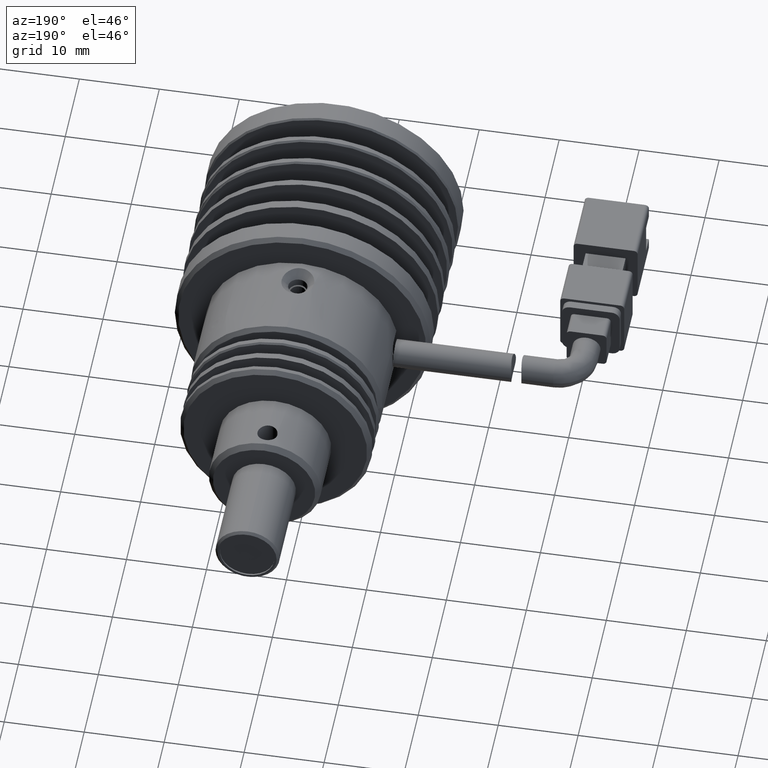
[diagram: clean part render]
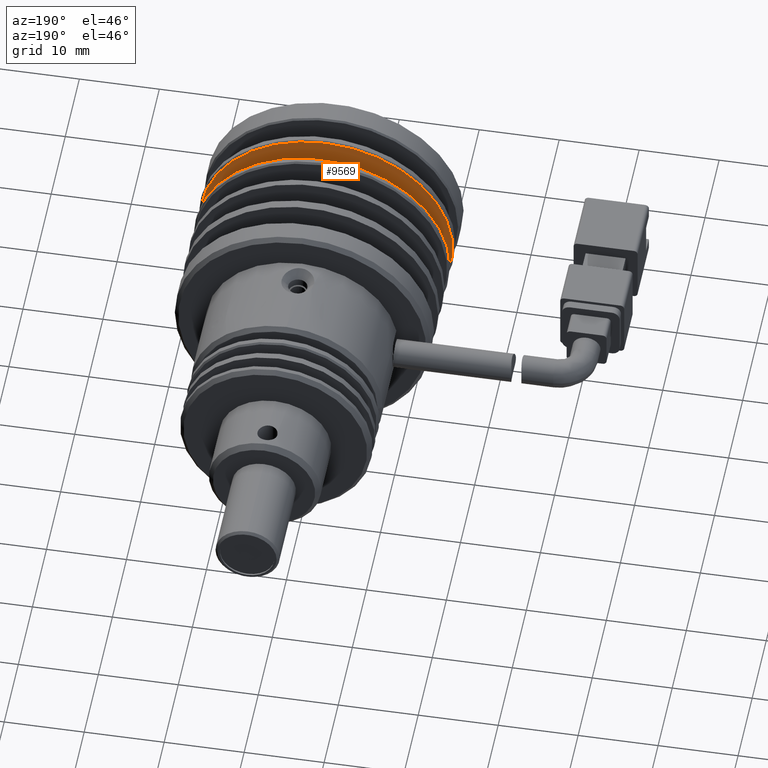
[diagram: same view with one face highlighted and labeled with its STEP entity id]
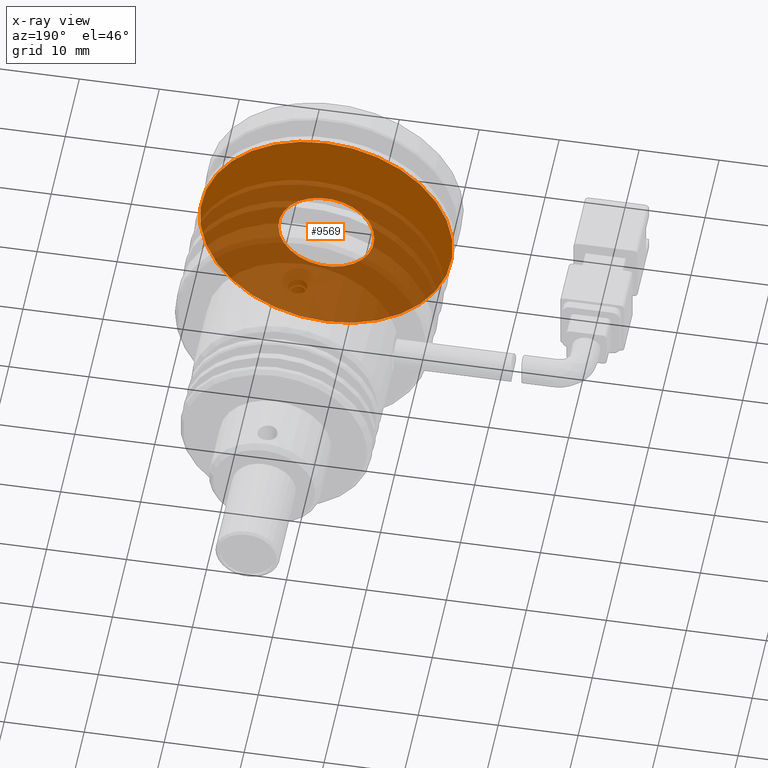
[diagram: x-ray of the same camera — body ghosted, the highlighted face saturated]
A machine part, auxiliary view. The second image highlights one B-rep face of the part: STEP entity #9569.
The next image is the same camera in x-ray: the body ghosted, the highlighted face saturated — about 67% of this face is hidden behind the body in this view.
In plain terms, the highlighted planar face has unit normal (0, 1, 0).
Its self-contained STEP definition (entity closure, byte-faithful):
#425 = PLANE ( 'NONE',  #9690 ) ;
#433 = CIRCLE ( 'NONE', #14340, 6.000000000000000000 ) ;
#901 = DIRECTION ( 'NONE',  ( -1.000000000000000000, 0.0000000000000000000, 0.0000000000000000000 ) ) ;
#1233 = DIRECTION ( 'NONE',  ( -0.0000000000000000000, 1.000000000000000000, -2.710505431213761100E-017 ) ) ;
#2024 = CIRCLE ( 'NONE', #2699, 15.79999999999998500 ) ;
#2148 = EDGE_CURVE ( 'NONE', #18841, #15437, #2024, .T. ) ;
#2699 = AXIS2_PLACEMENT_3D ( 'NONE', #16293, #7065, #17861 ) ;
#3679 = ORIENTED_EDGE ( 'NONE', *, *, #6151, .F. ) ;
#4483 = ORIENTED_EDGE ( 'NONE', *, *, #7498, .F. ) ;
#4677 = ORIENTED_EDGE ( 'NONE', *, *, #2148, .T. ) ;
#6151 = EDGE_CURVE ( 'NONE', #8706, #16908, #12099, .T. ) ;
#6495 = CARTESIAN_POINT ( 'NONE',  ( 18.57493378763569300, -32.91493551001260400, -9.174035921659418900 ) ) ;
#7065 = DIRECTION ( 'NONE',  ( -0.0000000000000000000, 1.000000000000000000, -2.710505431213761100E-017 ) ) ;
#7359 = CARTESIAN_POINT ( 'NONE',  ( 2.574933787635694100, -32.91493551001259700, 6.625964078340564900 ) ) ;
#7498 = EDGE_CURVE ( 'NONE', #16908, #8706, #433, .T. ) ;
#7819 = DIRECTION ( 'NONE',  ( 1.156482317317871500E-016, 1.000000000000000000, -0.0000000000000000000 ) ) ;
#7861 = AXIS2_PLACEMENT_3D ( 'NONE', #19287, #10027, #901 ) ;
#8043 = DIRECTION ( 'NONE',  ( 1.000000000000000000, -1.156482317317871500E-016, 0.0000000000000000000 ) ) ;
#8706 = VERTEX_POINT ( 'NONE', #19255 ) ;
#9569 = ADVANCED_FACE ( 'NONE', ( #12660, #13134 ), #425, .T. ) ;
#9690 = AXIS2_PLACEMENT_3D ( 'NONE', #6495, #17260, #8043 ) ;
#10027 = DIRECTION ( 'NONE',  ( 1.156482317317871500E-016, 1.000000000000000000, -0.0000000000000000000 ) ) ;
#10079 = ORIENTED_EDGE ( 'NONE', *, *, #11750, .T. ) ;
#10359 = CARTESIAN_POINT ( 'NONE',  ( 2.574933787635692400, -32.91493551001259700, -9.174035921659418900 ) ) ;
#11750 = EDGE_CURVE ( 'NONE', #15437, #18841, #19872, .T. ) ;
#11913 = DIRECTION ( 'NONE',  ( 0.0000000000000000000, 0.0000000000000000000, -1.000000000000000000 ) ) ;
#12099 = CIRCLE ( 'NONE', #7861, 6.000000000000000000 ) ;
#12426 = CARTESIAN_POINT ( 'NONE',  ( 2.574933787635692400, -32.91493551001259700, -24.97403592165940400 ) ) ;
#12660 = FACE_BOUND ( 'NONE', #16413, .T. ) ;
#12962 = EDGE_LOOP ( 'NONE', ( #10079, #4677 ) ) ;
#13134 = FACE_OUTER_BOUND ( 'NONE', #12962, .T. ) ;
#14340 = AXIS2_PLACEMENT_3D ( 'NONE', #17030, #7819, #18603 ) ;
#15437 = VERTEX_POINT ( 'NONE', #12426 ) ;
#16293 = CARTESIAN_POINT ( 'NONE',  ( 2.574933787635692400, -32.91493551001259700, -9.174035921659418900 ) ) ;
#16413 = EDGE_LOOP ( 'NONE', ( #4483, #3679 ) ) ;
#16908 = VERTEX_POINT ( 'NONE', #17503 ) ;
#17030 = CARTESIAN_POINT ( 'NONE',  ( 2.574933787635693200, -32.91493551001260400, -9.174035921659418900 ) ) ;
#17260 = DIRECTION ( 'NONE',  ( 1.156482317317871500E-016, 1.000000000000000000, 0.0000000000000000000 ) ) ;
#17503 = CARTESIAN_POINT ( 'NONE',  ( -3.425066212364306800, -32.91493551001260400, -9.174035921659418900 ) ) ;
#17861 = DIRECTION ( 'NONE',  ( 0.0000000000000000000, 0.0000000000000000000, -1.000000000000000000 ) ) ;
#18054 = AXIS2_PLACEMENT_3D ( 'NONE', #10359, #1233, #11913 ) ;
#18603 = DIRECTION ( 'NONE',  ( -1.000000000000000000, 0.0000000000000000000, 0.0000000000000000000 ) ) ;
#18841 = VERTEX_POINT ( 'NONE', #7359 ) ;
#19255 = CARTESIAN_POINT ( 'NONE',  ( 8.574933787635695000, -32.91493551001260400, -9.174035921659418900 ) ) ;
#19287 = CARTESIAN_POINT ( 'NONE',  ( 2.574933787635693200, -32.91493551001260400, -9.174035921659418900 ) ) ;
#19872 = CIRCLE ( 'NONE', #18054, 15.79999999999998500 ) ;